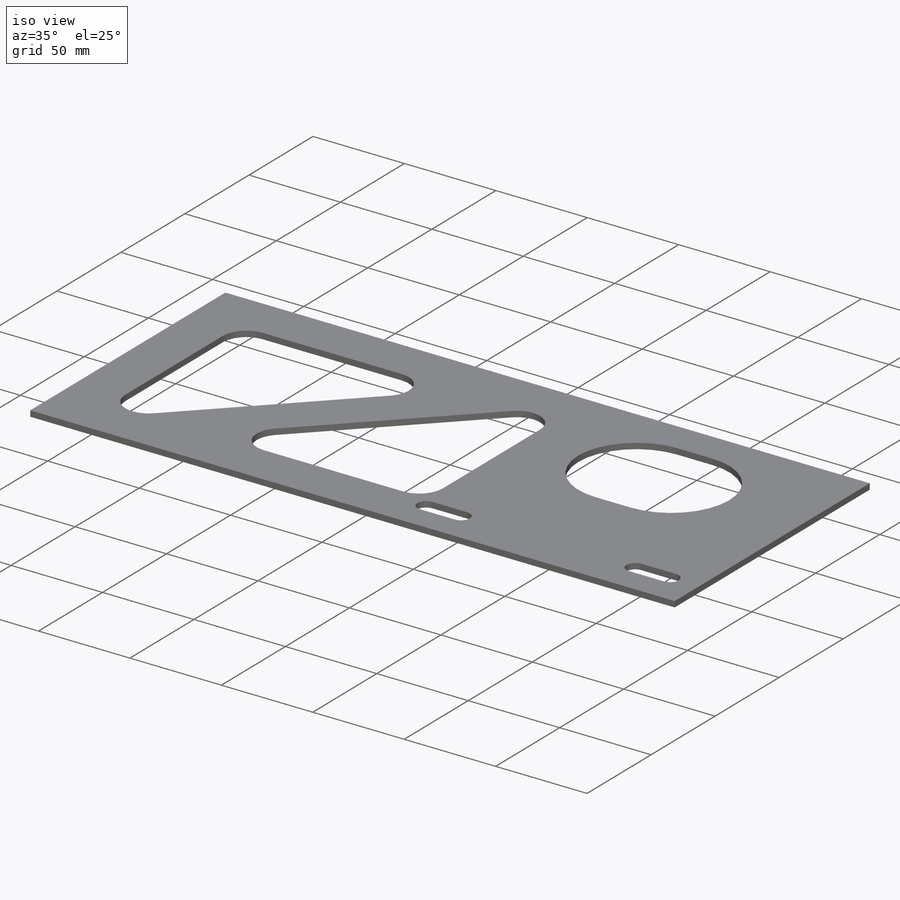
[diagram: iso view]
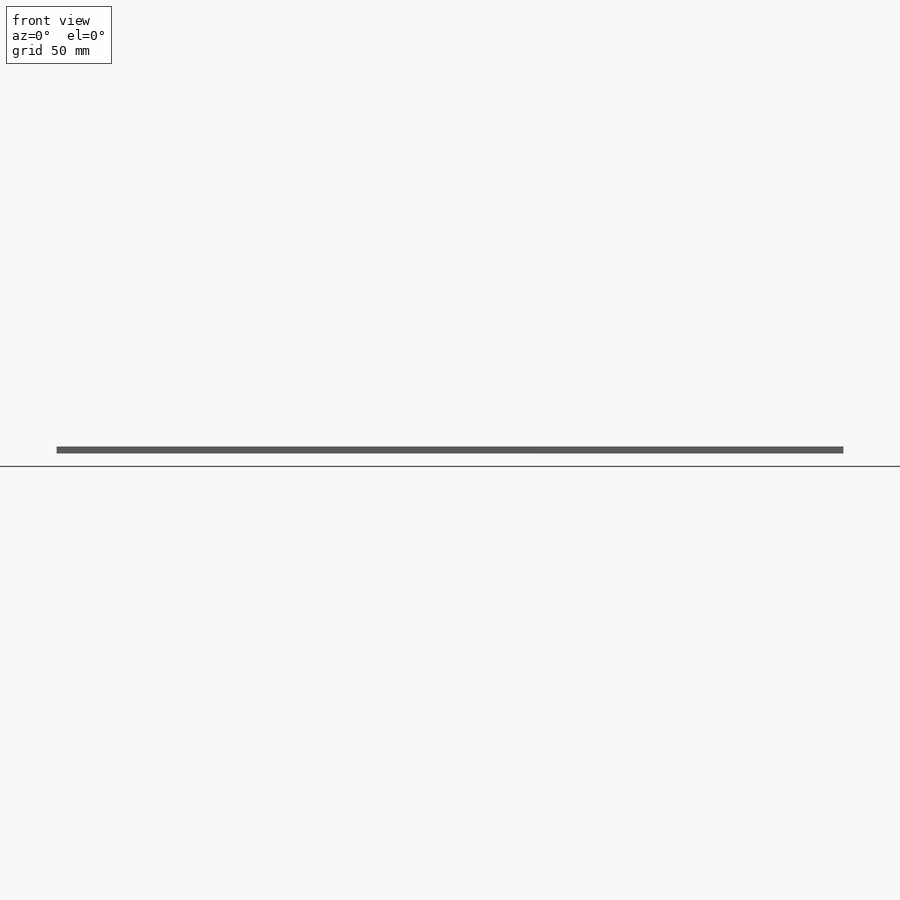
[diagram: front view]
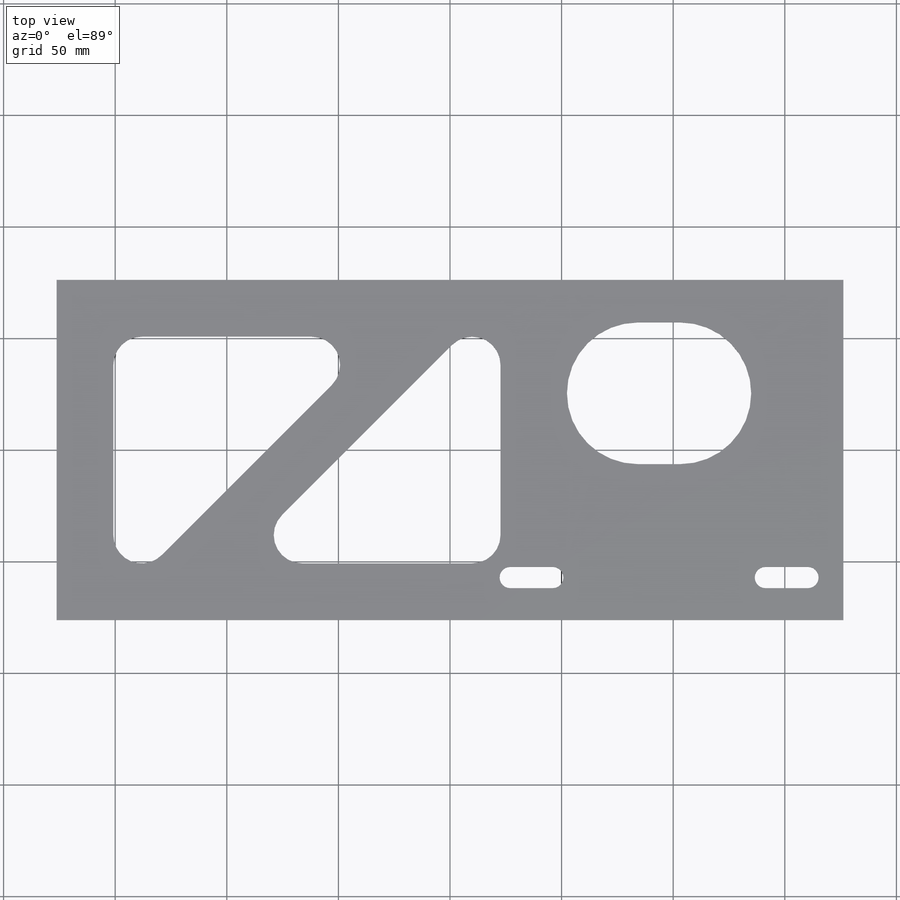
[diagram: top view]
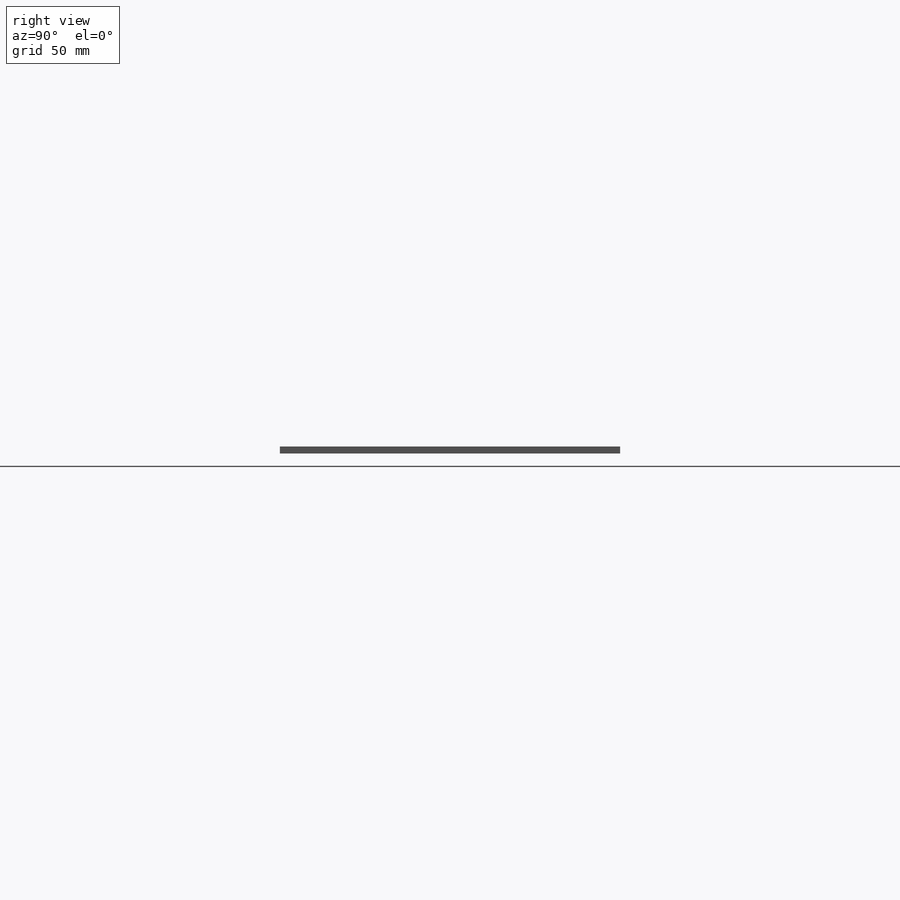
[diagram: right view]
SOLIDWORKS PART (.sldprt)
format: sldprt  version: not decoded by parser v0  size: 263,680 bytes
history: native  units: mm
features: sketch x4, cut_extrude x2, material x1, extrude x1 (+11 scaffold rows collapsed)
feature tree (19):
  scaffold x11  (default folders/planes/origin — collapsed)
  material  "ASTM A36 Steel"
  sketch  "Sketch1"  dims[D1=152.4mm D2=352.425mm]
  extrude  "Boss-Extrude1"  Depth=3.175mm
  sketch  "Sketch2"  dims[c1.D2=31.75mm c1.D7=12.7mm c1.D9=12.7mm c1.D14=6.35mm c1.D1=19.05mm c1.D3=57.15mm c1.D4=76.2mm c2.D3=44.45mm c2.D5=25.4mm c2.D6=25.4mm c2.D8=~48.477751mm c3.D8=45.0deg c3.D9=~64.782132mm c4.D9=~3.971119deg c5.D9=25.4mm c5.D10=25.4mm c5.D11=25.4mm c5.D12=25.4mm c5.D13=25.4mm c5.D4=82.55mm c5.D3=19.05mm]
  cut_extrude  "Cut-Extrude1"  [1 undecoded]
  sketch  "TAG"  dims[D1=3.175mm D2=152.4mm D3=352.425mm]
  sketch  "Sketch3"  dims[D1=114.3mm D2=25.4mm D3=19.05mm D4=19.05mm D5=9.525mm]
  cut_extrude  "Cut-Extrude2"  [1 undecoded]
decode coverage: 5 of 7 modeling features carry decoded parameters
note: ~ marks probable driven/reference dimensions
note: 2 parameter values undecoded
note: suppression state not decoded; provenance and decode notes live in map.json
